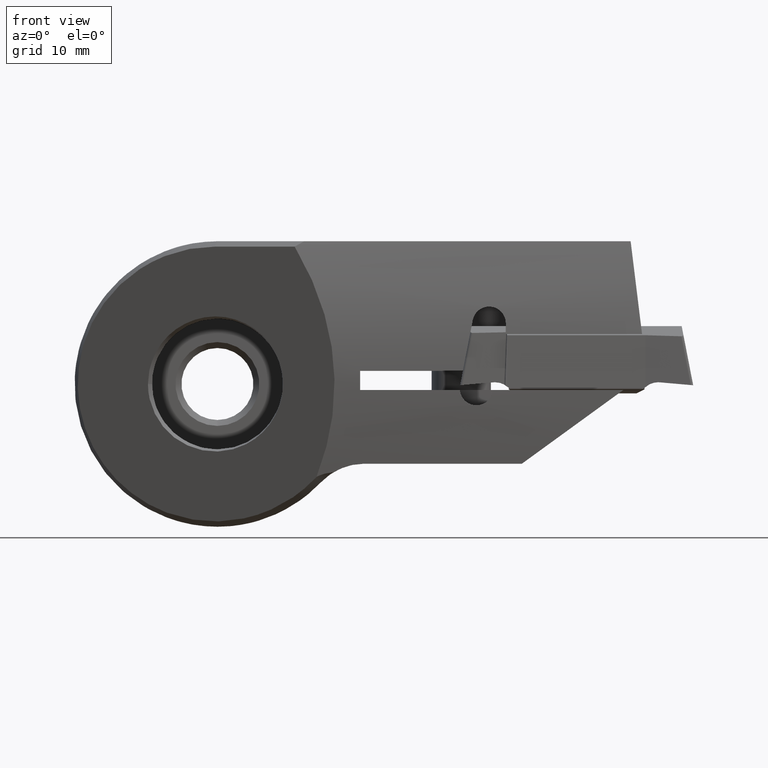
[diagram: clean part render]
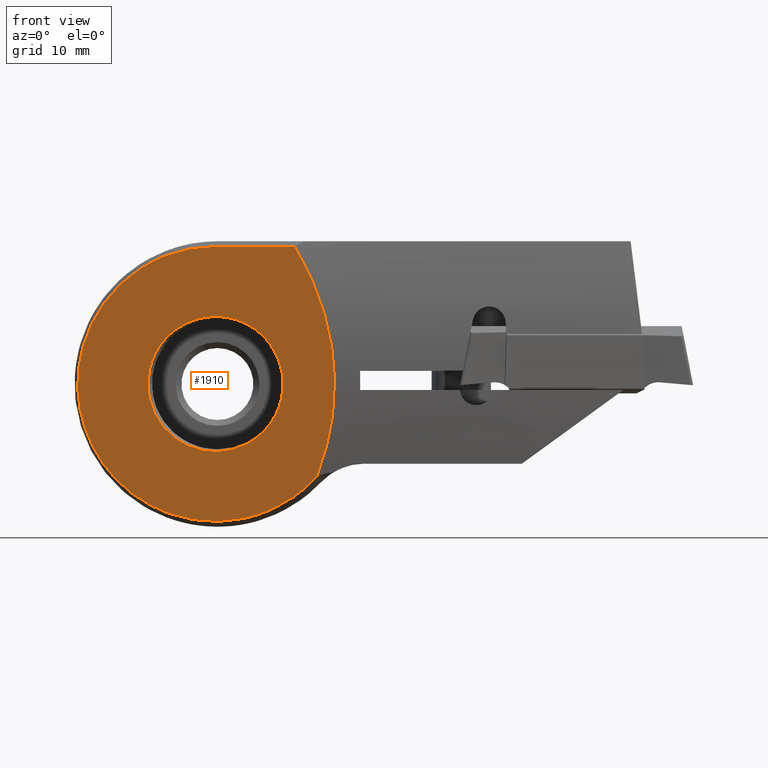
[diagram: same view with one face highlighted and labeled with its STEP entity id]
A machine part, front view. The second image highlights one B-rep face of the part: STEP entity #1910.
In plain terms, the highlighted planar face has unit normal (0.4226, 0.9063, -0).
Its self-contained STEP definition (entity closure, byte-faithful):
#846=EDGE_CURVE('Kante106',#1730,#1466,#2318,.T.);
#956=EDGE_CURVE('NONE',#2028,#2116,#2438,.T.);
#1112=EDGE_CURVE('NONE',#2140,#2116,#2612,.F.);
#1124=EDGE_CURVE('NONE',#1536,#2140,#2624,.T.);
#1368=EDGE_CURVE('Kante106',#1466,#1730,#2890,.T.);
#1466=VERTEX_POINT('NONE',#3003);
#1536=VERTEX_POINT('NONE',#3077);
#1730=VERTEX_POINT('NONE',#3287);
#1824=EDGE_CURVE('Kante130',#2028,#1536,#3399,.T.);
#1910=ADVANCED_FACE('Fl�che12',(#3489,#3490),#3491,.F.);
#2028=VERTEX_POINT('NONE',#3623);
#2116=VERTEX_POINT('NONE',#3717);
#2140=VERTEX_POINT('NONE',#3742);
#2318=B_SPLINE_CURVE_WITH_KNOTS('',3,(#3977,#3978,#3979,#3980,#3981,#3982,#3983,#3984,#3985,#3986,#3987,#3988,#3989,#3990,#3991,#3992,#3993,#3994),.UNSPECIFIED.,.F.,.F.,(4,2,2,2,2,2,2,2,4),(0.5,0.5625,0.625,0.6875,0.75,0.8125,0.875,0.9375,1.0),.UNSPECIFIED.);
#2438=ELLIPSE('',#4176,102.929768867133,43.5);
#2612=B_SPLINE_CURVE_WITH_KNOTS('',3,(#4568,#4569,#4570,#4571),.UNSPECIFIED.,.F.,.F.,(4,4),(-0.810040969711267,-0.0),.UNSPECIFIED.);
#2624=B_SPLINE_CURVE_WITH_KNOTS('',3,(#4599,#4600,#4601,#4602,#4603,#4604,#4605,#4606,#4607,#4608,#4609,#4610,#4611,#4612,#4613,#4614,#4615,#4616,#4617,#4618,#4619,#4620,#4621),.UNSPECIFIED.,.F.,.F.,(4,1,2,2,2,2,2,2,2,2,2,4),(0.0,0.0624999999999999,0.0937499999999999,0.125,0.25,0.375,0.5,0.625,0.75,0.8125,0.875,1.0),.UNSPECIFIED.);
#2890=B_SPLINE_CURVE_WITH_KNOTS('',3,(#5178,#5179,#5180,#5181,#5182,#5183,#5184,#5185,#5186,#5187,#5188,#5189,#5190,#5191,#5192,#5193,#5194,#5195),.UNSPECIFIED.,.F.,.F.,(4,2,2,2,2,2,2,2,4),(0.0,0.0625,0.125,0.1875,0.25,0.3125,0.375,0.4375,0.5),.UNSPECIFIED.);
#3003=CARTESIAN_POINT('',(-5.84099255856654,-14.8831700058873,0.0));
#3077=CARTESIAN_POINT('',(-0.189090218719429,-17.5186953501022,11.5525744251075));
#3287=CARTESIAN_POINT('',(5.52297767569964,-20.1822763531711,0.0));
#3399=LINE('',#6170,#6171);
#3489=FACE_OUTER_BOUND('',#6342,.T.);
#3490=FACE_BOUND('',#6343,.T.);
#3491=PLANE('',#6344);
#3623=CARTESIAN_POINT('',(6.5000802553074,-20.6379067688452,11.5525744251075));
#3717=CARTESIAN_POINT('',(8.33647463039345,-21.4942315293406,-7.80408532841553));
#3742=CARTESIAN_POINT('',(8.19215865515161,-21.4269358848912,-7.95088945727988));
#3977=CARTESIAN_POINT('',(5.52297767569964,-20.1822763531711,0.0));
#3978=CARTESIAN_POINT('',(5.52309473323526,-20.1823309379964,-0.744238773033409));
#3979=CARTESIAN_POINT('',(5.37694984658508,-20.1141824581512,-1.46947116376711));
#3980=CARTESIAN_POINT('',(4.79478436184842,-19.842714234305,-2.8755272581415));
#3981=CARTESIAN_POINT('',(4.38493535714611,-19.6515985047251,-3.49143207143015));
#3982=CARTESIAN_POINT('',(3.33259017383868,-19.1608818867263,-4.54410834242156));
#3983=CARTESIAN_POINT('',(2.71643352738112,-18.8735633238601,-4.95358473667105));
#3984=CARTESIAN_POINT('',(1.31054637940893,-18.2179873802589,-5.53616435462935));
#3985=CARTESIAN_POINT('',(0.585229500315315,-17.8797665649485,-5.68186805950522));
#3986=CARTESIAN_POINT('',(-0.903244383182236,-17.1856797941099,-5.68210217476097));
#3987=CARTESIAN_POINT('',(-1.62847516181755,-16.8474991281025,-5.53595770532435));
#3988=CARTESIAN_POINT('',(-3.03453451070631,-16.1918428858953,-4.95379138597606));
#3989=CARTESIAN_POINT('',(-3.6504390964883,-15.9046418608523,-4.54394321389517));
#3990=CARTESIAN_POINT('',(-4.70311620023028,-15.413770465813,-3.49159719995655));
#3991=CARTESIAN_POINT('',(-5.11224073228069,-15.2229925633788,-2.87629027655648));
#3992=CARTESIAN_POINT('',(-5.6955232418866,-14.9510034622817,-1.46870814535214));
#3993=CARTESIAN_POINT('',(-5.84122676571423,-14.8830607933007,-0.7445417417007));
#3994=CARTESIAN_POINT('',(-5.84099255856654,-14.8831700058873,0.0));
#4176=AXIS2_PLACEMENT_3D('',#7129,#7130,#7131);
#4568=CARTESIAN_POINT('',(9.28512548884534,-21.936594689552,-7.06341224248901));
#4569=CARTESIAN_POINT('',(8.6767870627501,-21.6529218227139,-7.43835226937478));
#4570=CARTESIAN_POINT('',(8.30522131429955,-21.4796578687033,-7.83131574581728));
#4571=CARTESIAN_POINT('',(8.12855435514178,-21.397276712705,-8.01815660166223));
#4599=CARTESIAN_POINT('',(-0.189090218719429,-17.5186953501022,11.5525744251075));
#4600=CARTESIAN_POINT('',(-1.1586526806973,-17.0665809490223,11.5534416155385));
#4601=CARTESIAN_POINT('',(-2.57074544812981,-16.4081112775432,11.3813292568176));
#4602=CARTESIAN_POINT('',(-3.91946182726091,-15.7791945012753,10.9490971815457));
#4603=CARTESIAN_POINT('',(-4.8045224381702,-15.3664839604769,10.6031380832421));
#4604=CARTESIAN_POINT('',(-5.241008751759,-15.1629470497706,10.4007188600971));
#4605=CARTESIAN_POINT('',(-7.37825292452578,-14.1663337246623,9.24948662338536));
#4606=CARTESIAN_POINT('',(-8.7683471018784,-13.5181221642061,7.97661913822175));
#4607=CARTESIAN_POINT('',(-10.9051878083568,-12.5216969785179,4.73310938601233));
#4608=CARTESIAN_POINT('',(-11.5252580063479,-12.232553496601,2.95320189547539));
#4609=CARTESIAN_POINT('',(-11.8680645373127,-12.0727001859465,-0.915767915929602));
#4610=CARTESIAN_POINT('',(-11.5697448683731,-12.2118089321513,-2.77683296048714));
#4611=CARTESIAN_POINT('',(-10.0364933251901,-12.9267758686156,-6.34552787940731));
#4612=CARTESIAN_POINT('',(-8.89116324103333,-13.4608520579732,-7.84245029683428));
#4613=CARTESIAN_POINT('',(-5.848717314339,-14.8795678931132,-10.2569826532098));
#4614=CARTESIAN_POINT('',(-4.13042188142378,-15.6808222124544,-11.0315912844491));
#4615=CARTESIAN_POINT('',(-1.26267003637469,-17.0180768594889,-11.5435716990841));
#4616=CARTESIAN_POINT('',(-0.314965215230897,-17.4599988752586,-11.5957333764051));
#4617=CARTESIAN_POINT('',(1.56401950597822,-18.3361838403147,-11.4630598092662));
#4618=CARTESIAN_POINT('',(2.49397926830176,-18.7698311992622,-11.2786583817253));
#4619=CARTESIAN_POINT('',(5.26714200010533,-20.0629782184122,-10.3673558149159));
#4620=CARTESIAN_POINT('',(6.85840593663267,-20.8049967781608,-9.35935534752407));
#4621=CARTESIAN_POINT('',(8.19215865515161,-21.4269358848912,-7.95088945727988));
#5178=CARTESIAN_POINT('',(-5.84099255856654,-14.8831700058873,0.0));
#5179=CARTESIAN_POINT('',(-5.84075817972066,-14.883279298538,0.745087568224778));
#5180=CARTESIAN_POINT('',(-5.69496472945012,-14.951263900908,1.46947116376822));
#5181=CARTESIAN_POINT('',(-5.11279924471718,-15.2227321247525,2.87552725814039));
#5182=CARTESIAN_POINT('',(-4.70295024001415,-15.4138478543327,3.49143207142977));
#5183=CARTESIAN_POINT('',(-3.65060505670445,-15.9045644723326,4.54410834242193));
#5184=CARTESIAN_POINT('',(-3.03444841024597,-16.1918830351993,4.95358473667181));
#5185=CARTESIAN_POINT('',(-1.62856126227789,-16.8474589787985,5.53616435462859));
#5186=CARTESIAN_POINT('',(-0.903244383181557,-17.1856797941102,5.68186805950447));
#5187=CARTESIAN_POINT('',(0.585229500314661,-17.8797665649482,5.68210217476173));
#5188=CARTESIAN_POINT('',(1.31046027894711,-18.2179472309542,5.53595770532629));
#5189=CARTESIAN_POINT('',(2.71651962784295,-18.8736034731648,4.95379138597411));
#5190=CARTESIAN_POINT('',(3.33242421361801,-19.1608044982045,4.54394321390013));
#5191=CARTESIAN_POINT('',(4.38510131736679,-19.651675893247,3.49159719995156));
#5192=CARTESIAN_POINT('',(4.79457729514469,-19.8426176775153,2.87544216484241));
#5193=CARTESIAN_POINT('',(5.37715691328882,-20.1142790149409,1.46955625706619));
#5194=CARTESIAN_POINT('',(5.52286061816403,-20.1822217683458,0.744238773033409));
#5195=CARTESIAN_POINT('',(5.52297767569964,-20.1822763531711,0.0));
#6170=CARTESIAN_POINT('',(1.55308885183656,-18.3310867925798,11.5525744251075));
#6171=VECTOR('',#8186,1.0);
#6342=EDGE_LOOP('',(#8253,#8254,#8255,#8256));
#6343=EDGE_LOOP('',(#8257,#8258));
#6344=AXIS2_PLACEMENT_3D('',#8259,#8260,#8261);
#7129=CARTESIAN_POINT('',(-83.4360510421654,21.3,0.0));
#7130=DIRECTION('',(0.422618261740701,0.906307787036649,0.0));
#7131=DIRECTION('',(-0.906307787036649,0.422618261740701,-0.0));
#8186=DIRECTION('',(-0.906307787036649,0.422618261740701,-7.85046229341889E-017));
#8253=ORIENTED_EDGE('',*,*,#956,.F.);
#8254=ORIENTED_EDGE('',*,*,#1824,.T.);
#8255=ORIENTED_EDGE('',*,*,#1124,.T.);
#8256=ORIENTED_EDGE('',*,*,#1112,.T.);
#8257=ORIENTED_EDGE('',*,*,#1368,.T.);
#8258=ORIENTED_EDGE('',*,*,#846,.T.);
#8259=CARTESIAN_POINT('',(9.85,-22.2,17.5));
#8260=DIRECTION('',(0.422618261740701,0.906307787036649,-0.0));
#8261=DIRECTION('',(0.0,0.0,1.0));